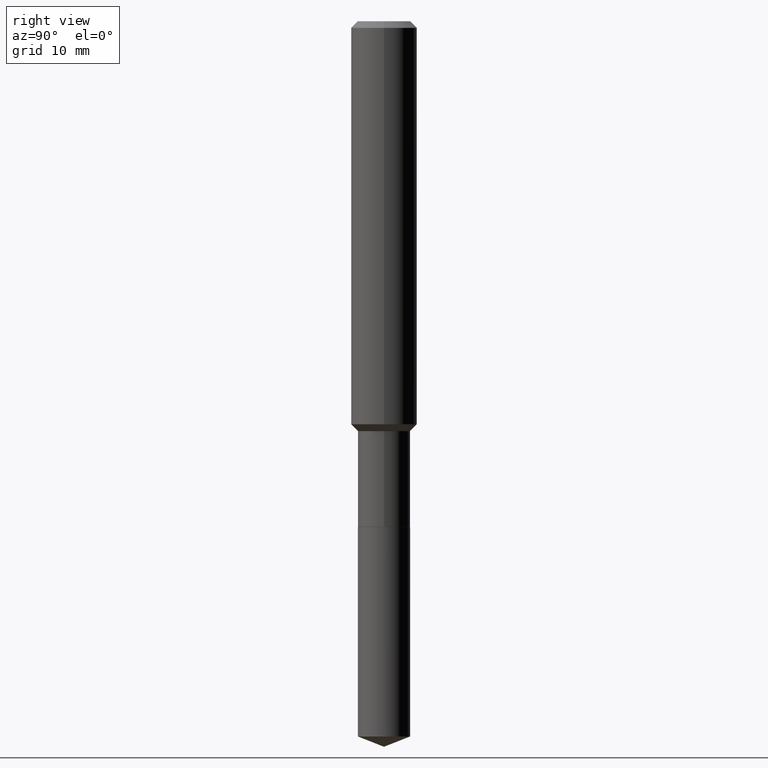
[diagram: clean part render]
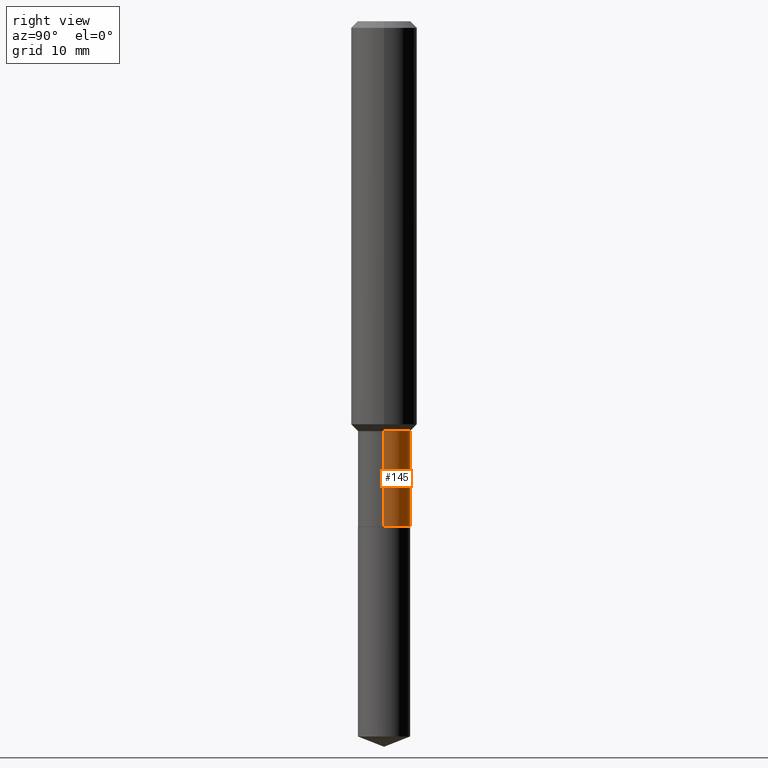
[diagram: same view with one face highlighted and labeled with its STEP entity id]
A machine part, right view. The second image highlights one B-rep face of the part: STEP entity #145.
In plain terms, the highlighted cylindrical surface (edge-blend (fillet) strip) has radius 2.3812 mm, axis along (-0, 0, 1).
Its self-contained STEP definition (entity closure, byte-faithful):
#7 = LINE ( 'NONE', #224, #334 ) ;
#8 = DIRECTION ( 'NONE',  ( 1.000000000000000000, -6.982962677686265922E-15, 0.000000000000000000 ) ) ;
#23 = ORIENTED_EDGE ( 'NONE', *, *, #478, .F. ) ;
#25 = ORIENTED_EDGE ( 'NONE', *, *, #406, .T. ) ;
#47 = DIRECTION ( 'NONE',  ( -2.445468806185136597E-29, 3.491481338843145583E-15, 1.000000000000000000 ) ) ;
#48 = EDGE_LOOP ( 'NONE', ( #25, #214, #228, #23 ) ) ;
#60 = DIRECTION ( 'NONE',  ( -2.445468806185136877E-29, 3.491481338843145188E-15, 1.000000000000000000 ) ) ;
#68 = AXIS2_PLACEMENT_3D ( 'NONE', #136, #47, #282 ) ;
#85 = CIRCLE ( 'NONE', #225, 0.09374999999999998612 ) ;
#96 = CARTESIAN_POINT ( 'NONE',  ( 3.589703660599161390E-29, -5.125145457287853703E-15, -1.467899999999999983 ) ) ;
#101 = CARTESIAN_POINT ( 'NONE',  ( 0.09374999999999997224, -6.546527510330873069E-16, 4.571415727308688405E-30 ) ) ;
#108 = EDGE_CURVE ( 'NONE', #244, #290, #7, .T. ) ;
#129 = CYLINDRICAL_SURFACE ( 'NONE', #68, 0.09374999999999997224 ) ;
#136 = CARTESIAN_POINT ( 'NONE',  ( 0.000000000000000000, 0.000000000000000000, 0.000000000000000000 ) ) ;
#145 = ADVANCED_FACE ( 'NONE', ( #319 ), #129, .T. ) ;
#159 = CARTESIAN_POINT ( 'NONE',  ( 4.427521273598189436E-29, -6.321326963975514491E-15, -1.810499999999999998 ) ) ;
#196 = VERTEX_POINT ( 'NONE', #372 ) ;
#205 = DIRECTION ( 'NONE',  ( -2.445468806185136597E-29, 3.491481338843145583E-15, 1.000000000000000000 ) ) ;
#214 = ORIENTED_EDGE ( 'NONE', *, *, #108, .T. ) ;
#224 = CARTESIAN_POINT ( 'NONE',  ( -0.09374999999999997224, 6.661338147750937270E-16, -4.611501647113972594E-30 ) ) ;
#225 = AXIS2_PLACEMENT_3D ( 'NONE', #159, #205, #314 ) ;
#228 = ORIENTED_EDGE ( 'NONE', *, *, #422, .F. ) ;
#244 = VERTEX_POINT ( 'NONE', #488 ) ;
#246 = DIRECTION ( 'NONE',  ( -2.445468806185136597E-29, 3.491481338843145583E-15, 1.000000000000000000 ) ) ;
#250 = VERTEX_POINT ( 'NONE', #409 ) ;
#266 = CARTESIAN_POINT ( 'NONE',  ( -0.09374999999999995837, -5.057102395856590568E-15, -1.467899999999999983 ) ) ;
#282 = DIRECTION ( 'NONE',  ( 1.000000000000000000, -6.982962677686266711E-15, 4.876176775795935793E-29 ) ) ;
#290 = VERTEX_POINT ( 'NONE', #266 ) ;
#314 = DIRECTION ( 'NONE',  ( 1.000000000000000000, -6.982962677686263555E-15, 0.000000000000000000 ) ) ;
#319 = FACE_OUTER_BOUND ( 'NONE', #48, .T. ) ;
#330 = VECTOR ( 'NONE', #60, 39.37007874015748143 ) ;
#334 = VECTOR ( 'NONE', #454, 39.37007874015748143 ) ;
#363 = AXIS2_PLACEMENT_3D ( 'NONE', #96, #246, #8 ) ;
#372 = CARTESIAN_POINT ( 'NONE',  ( 0.09374999999999995837, -5.779798208320940419E-15, -1.467899999999999983 ) ) ;
#406 = EDGE_CURVE ( 'NONE', #250, #244, #85, .T. ) ;
#409 = CARTESIAN_POINT ( 'NONE',  ( 0.09374999999999998612, -6.975979715008601996E-15, -1.810499999999999998 ) ) ;
#422 = EDGE_CURVE ( 'NONE', #196, #290, #451, .T. ) ;
#451 = CIRCLE ( 'NONE', #363, 0.09374999999999995837 ) ;
#454 = DIRECTION ( 'NONE',  ( -2.445468806185136877E-29, 3.491481338843145188E-15, 1.000000000000000000 ) ) ;
#478 = EDGE_CURVE ( 'NONE', #250, #196, #481, .T. ) ;
#481 = LINE ( 'NONE', #101, #330 ) ;
#488 = CARTESIAN_POINT ( 'NONE',  ( -0.09374999999999998612, -5.057102395856590568E-15, -1.810499999999999998 ) ) ;